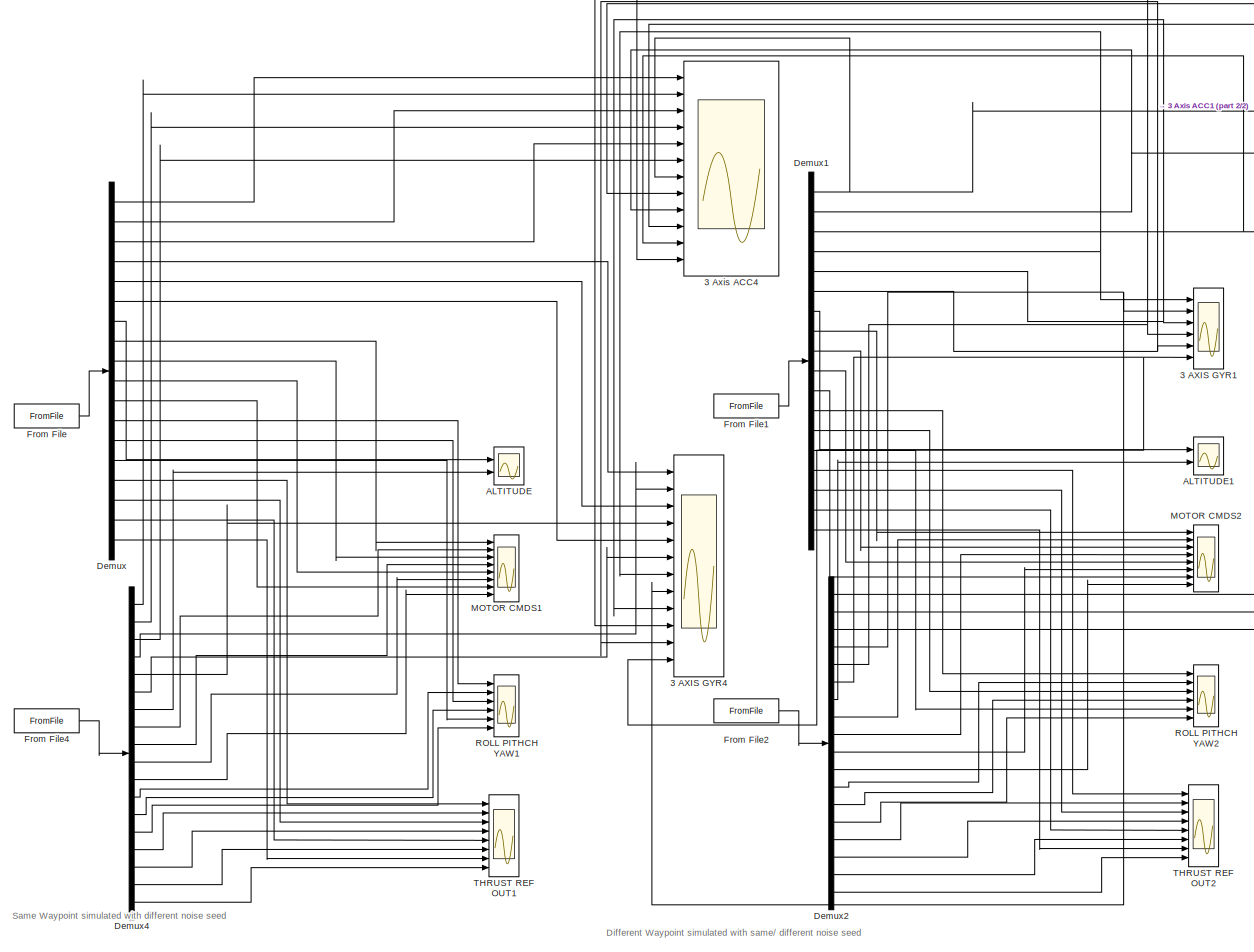
[diagram: root canvas - part 1/2, most of the canvas]
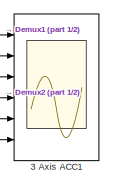
[diagram: root canvas - part 2/2, top right region]
MODEL slx_3817df0aadfa
KIND model
CONFIG AbsTol = auto
CONFIG EnableMultiTasking = off
CONFIG FixedStep = auto
CONFIG MaxStep = auto
CONFIG MinStep = auto
CONFIG RelTol = 1e-3
CONFIG SampleTimeConstraint = Unconstrained
CONFIG Solver = VariableStepAuto
CONFIG SolverName = VariableStepAuto
CONFIG StartTime = 0.0
CONFIG StopTime = 60
BLOCK [Scope] 3 AXIS GYR1
  Floating = off
  NumInputPorts = 6
  Ports = [6]
  ScopeSpecificationString = Simulink.scopes.TimeScopeBlockCfg('CurrentConfiguration', extmgr.ConfigurationSet(extmgr.Configuration('Core','General UI',true),extmgr.Configuration('Core','Source UI',true),extmgr.Configuration('Sources','WiredSimulink',true,'DataLoggingVariableName','ScopeData1'),extmgr.Configuration('Visuals','Time Domain',true,'SerializedDisplays',{struct('MinYLimReal','-1.17519','MaxYLimReal','0.89569','YLab...<+1581ch>
BLOCK [Scope] 3 AXIS GYR4
  Floating = off
  NumInputPorts = 12
  Ports = [12]
  ScopeSpecificationString = Simulink.scopes.TimeScopeBlockCfg('CurrentConfiguration', extmgr.ConfigurationSet(extmgr.Configuration('Core','General UI',true),extmgr.Configuration('Core','Source UI',true),extmgr.Configuration('Sources','WiredSimulink',true,'DataLoggingVariableName','ScopeData2'),extmgr.Configuration('Visuals','Time Domain',true,'SerializedDisplays',{struct('MinYLimReal','-0.71311','MaxYLimReal','0.81738','YLab...<+1843ch>
BLOCK [Scope] 3 Axis ACC1
  Floating = off
  NumInputPorts = 6
  Ports = [6]
  ScopeSpecificationString = Simulink.scopes.TimeScopeBlockCfg('CurrentConfiguration', extmgr.ConfigurationSet(extmgr.Configuration('Core','General UI',true),extmgr.Configuration('Core','Source UI',true),extmgr.Configuration('Sources','WiredSimulink',true,'DataLoggingVariableName','ScopeData2'),extmgr.Configuration('Visuals','Time Domain',true,'SerializedDisplays',{struct('MinYLimReal','-17.13825','MaxYLimReal','8.97232','YLa...<+1771ch>
BLOCK [Scope] 3 Axis ACC4
  Floating = off
  NumInputPorts = 12
  Ports = [12]
  ScopeSpecificationString = Simulink.scopes.TimeScopeBlockCfg('CurrentConfiguration', extmgr.ConfigurationSet(extmgr.Configuration('Core','General UI',true),extmgr.Configuration('Core','Source UI',true),extmgr.Configuration('Sources','WiredSimulink',true),extmgr.Configuration('Visuals','Time Domain',true,'SerializedDisplays',{struct('MinYLimReal','-1.9196','MaxYLimReal','1.24784','YLabelReal','','MinYLimMag','0.00000','MaxYL...<+1799ch>
BLOCK [Scope] ALTITUDE
  Floating = off
  NumInputPorts = 2
  Ports = [2]
  ScopeSpecificationString = Simulink.scopes.TimeScopeBlockCfg('CurrentConfiguration', extmgr.ConfigurationSet(extmgr.Configuration('Core','General UI',true),extmgr.Configuration('Core','Source UI',true),extmgr.Configuration('Sources','WiredSimulink',true,'DataLoggingVariableName','ScopeData1'),extmgr.Configuration('Visuals','Time Domain',true,'SerializedDisplays',{struct('MinYLimReal','-1.61246','MaxYLimReal','18.91216','YLa...<+1381ch>
BLOCK [Scope] ALTITUDE1
  Floating = off
  NumInputPorts = 2
  Ports = [2]
  ScopeSpecificationString = Simulink.scopes.TimeScopeBlockCfg('CurrentConfiguration', extmgr.ConfigurationSet(extmgr.Configuration('Core','General UI',true),extmgr.Configuration('Core','Source UI',true),extmgr.Configuration('Sources','WiredSimulink',true,'DataLoggingVariableName','ScopeData3'),extmgr.Configuration('Visuals','Time Domain',true,'SerializedDisplays',{struct('MinYLimReal','-1.61246','MaxYLimReal','18.91216','YLa...<+1381ch>
BLOCK [Demux] Demux
  Outputs = 18
  Ports = [1, 18]
BLOCK [Demux] Demux1
  Outputs = 18
  Ports = [1, 18]
BLOCK [Demux] Demux2
  Outputs = 18
  Ports = [1, 18]
BLOCK [Demux] Demux4
  Outputs = 18
  Ports = [1, 18]
BLOCK [FromFile] From File
  FileName = <userpath>\Documents\MATLAB\Master_Thesis\model\parrotMinidroneWaypointFollower\Fault_Free_Data\Fault_Free_Simulation_1.mat
  SampleTime = 0.1
BLOCK [FromFile] From File1
  FileName = <userpath>\Documents\MATLAB\Master_Thesis\model\parrotMinidroneWaypointFollower\Fault_Free_Data\Fault_Free_Simulation_90.mat
  SampleTime = 0.1
BLOCK [FromFile] From File2
  FileName = <userpath>\Documents\MATLAB\Master_Thesis\model\parrotMinidroneWaypointFollower\Fault_Free_Data\Fault_Free_Simulation_185.mat
  SampleTime = 0.1
BLOCK [FromFile] From File4
  FileName = <userpath>\Documents\MATLAB\Master_Thesis\model\parrotMinidroneWaypointFollower\Fault_Free_Data\Fault_Free_Simulation_12.mat
  SampleTime = 0.1
BLOCK [Scope] MOTOR CMDS1
  Floating = off
  NumInputPorts = 8
  Ports = [8]
  ScopeSpecificationString = Simulink.scopes.TimeScopeBlockCfg('CurrentConfiguration', extmgr.ConfigurationSet(extmgr.Configuration('Core','General UI',true),extmgr.Configuration('Core','Source UI',true),extmgr.Configuration('Sources','WiredSimulink',true,'DataLoggingVariableName','ScopeData3'),extmgr.Configuration('Visuals','Time Domain',true,'SerializedDisplays',{struct('MinYLimReal','216.80864','MaxYLimReal','245.97848','Y...<+1531ch>
BLOCK [Scope] MOTOR CMDS2
  Floating = off
  NumInputPorts = 8
  Ports = [8]
  ScopeSpecificationString = Simulink.scopes.TimeScopeBlockCfg('CurrentConfiguration', extmgr.ConfigurationSet(extmgr.Configuration('Core','General UI',true),extmgr.Configuration('Core','Source UI',true),extmgr.Configuration('Sources','WiredSimulink',true,'DataLoggingVariableName','ScopeData4'),extmgr.Configuration('Visuals','Time Domain',true,'SerializedDisplays',{struct('MinYLimReal','-429.47679','MaxYLimReal','429.48909','...<+1458ch>
BLOCK [Scope] ROLL PITHCH YAW1
  Floating = off
  NumInputPorts = 6
  Ports = [6]
  ScopeSpecificationString = Simulink.scopes.TimeScopeBlockCfg('CurrentConfiguration', extmgr.ConfigurationSet(extmgr.Configuration('Core','General UI',true),extmgr.Configuration('Core','Source UI',true),extmgr.Configuration('Sources','WiredSimulink',true,'DataLoggingVariableName','ScopeData4'),extmgr.Configuration('Visuals','Time Domain',true,'SerializedDisplays',{struct('MinYLimReal','-0.43549','MaxYLimReal','0.29225','YLab...<+1593ch>
BLOCK [Scope] ROLL PITHCH YAW2
  Floating = off
  NumInputPorts = 6
  Ports = [6]
  ScopeSpecificationString = Simulink.scopes.TimeScopeBlockCfg('CurrentConfiguration', extmgr.ConfigurationSet(extmgr.Configuration('Core','General UI',true),extmgr.Configuration('Core','Source UI',true),extmgr.Configuration('Sources','WiredSimulink',true,'DataLoggingVariableName','ScopeData5'),extmgr.Configuration('Visuals','Time Domain',true,'SerializedDisplays',{struct('MinYLimReal','-0.43549','MaxYLimReal','0.29225','YLab...<+1593ch>
BLOCK [Scope] THRUST REF OUT1
  Floating = off
  NumInputPorts = 8
  Ports = [8]
  ScopeSpecificationString = Simulink.scopes.TimeScopeBlockCfg('CurrentConfiguration', extmgr.ConfigurationSet(extmgr.Configuration('Core','General UI',true),extmgr.Configuration('Core','Source UI',true),extmgr.Configuration('Sources','WiredSimulink',true,'DataLoggingVariableName','ScopeData5'),extmgr.Configuration('Visuals','Time Domain',true,'SerializedDisplays',{struct('MinYLimReal','-0.29022','MaxYLimReal','0.36732','YLab...<+1448ch>
BLOCK [Scope] THRUST REF OUT2
  Floating = off
  NumInputPorts = 8
  Ports = [8]
  ScopeSpecificationString = Simulink.scopes.TimeScopeBlockCfg('CurrentConfiguration', extmgr.ConfigurationSet(extmgr.Configuration('Core','General UI',true),extmgr.Configuration('Core','Source UI',true),extmgr.Configuration('Sources','WiredSimulink',true,'DataLoggingVariableName','ScopeData7'),extmgr.Configuration('Visuals','Time Domain',true,'SerializedDisplays',{struct('MinYLimReal','-0.29022','MaxYLimReal','0.36732','YLab...<+1448ch>
ANNOTATION (root): Different Waypoint simulated with same/ different noise seed
ANNOTATION (root): Same Waypoint simulated with different noise seed
NET Demux1:1 -> 3 Axis ACC1:1, 3 Axis ACC4:7
LINE Demux1:10 -> MOTOR CMDS2:5
LINE Demux1:11 -> MOTOR CMDS2:7
LINE Demux1:12 -> ROLL PITHCH YAW2:1
LINE Demux1:13 -> ROLL PITHCH YAW2:3
LINE Demux1:14 -> ROLL PITHCH YAW2:5
LINE Demux1:15 -> THRUST REF OUT2:1
LINE Demux1:16 -> THRUST REF OUT2:3
LINE Demux1:17 -> THRUST REF OUT2:5
LINE Demux1:18 -> THRUST REF OUT2:7
NET Demux1:2 -> 3 Axis ACC1:3, 3 Axis ACC4:9
NET Demux1:3 -> 3 Axis ACC1:5, 3 Axis ACC4:11
NET Demux1:4 -> 3 AXIS GYR1:1, 3 AXIS GYR4:7
NET Demux1:5 -> 3 AXIS GYR1:3, 3 AXIS GYR4:9
NET Demux1:6 -> 3 AXIS GYR1:5, 3 AXIS GYR4:11
LINE Demux1:7 -> ALTITUDE1:1
LINE Demux1:8 -> MOTOR CMDS2:1
LINE Demux1:9 -> MOTOR CMDS2:3
NET Demux2:1 -> 3 Axis ACC1:2, 3 Axis ACC4:8
LINE Demux2:10 -> MOTOR CMDS2:6
LINE Demux2:11 -> MOTOR CMDS2:8
LINE Demux2:12 -> ROLL PITHCH YAW2:2
LINE Demux2:13 -> ROLL PITHCH YAW2:4
LINE Demux2:14 -> ROLL PITHCH YAW2:6
LINE Demux2:15 -> THRUST REF OUT2:2
LINE Demux2:16 -> THRUST REF OUT2:4
LINE Demux2:17 -> THRUST REF OUT2:6
LINE Demux2:18 -> THRUST REF OUT2:8
NET Demux2:2 -> 3 Axis ACC1:4, 3 Axis ACC4:10
NET Demux2:3 -> 3 Axis ACC1:6, 3 Axis ACC4:12
NET Demux2:4 -> 3 AXIS GYR1:2, 3 AXIS GYR4:8
NET Demux2:5 -> 3 AXIS GYR1:4, 3 AXIS GYR4:10
NET Demux2:6 -> 3 AXIS GYR1:6, 3 AXIS GYR4:12
LINE Demux2:7 -> ALTITUDE1:2
LINE Demux2:8 -> MOTOR CMDS2:2
LINE Demux2:9 -> MOTOR CMDS2:4
LINE Demux4:1 -> 3 Axis ACC4:2
LINE Demux4:10 -> MOTOR CMDS1:6
LINE Demux4:11 -> MOTOR CMDS1:8
LINE Demux4:12 -> ROLL PITHCH YAW1:2
LINE Demux4:13 -> ROLL PITHCH YAW1:4
LINE Demux4:14 -> ROLL PITHCH YAW1:6
LINE Demux4:15 -> THRUST REF OUT1:2
LINE Demux4:16 -> THRUST REF OUT1:4
LINE Demux4:17 -> THRUST REF OUT1:6
LINE Demux4:18 -> THRUST REF OUT1:8
LINE Demux4:2 -> 3 Axis ACC4:4
LINE Demux4:3 -> 3 Axis ACC4:6
LINE Demux4:4 -> 3 AXIS GYR4:2
LINE Demux4:5 -> 3 AXIS GYR4:4
LINE Demux4:6 -> 3 AXIS GYR4:6
LINE Demux4:7 -> ALTITUDE:2
LINE Demux4:8 -> MOTOR CMDS1:2
LINE Demux4:9 -> MOTOR CMDS1:4
LINE Demux:1 -> 3 Axis ACC4:1
LINE Demux:10 -> MOTOR CMDS1:5
LINE Demux:11 -> MOTOR CMDS1:7
LINE Demux:12 -> ROLL PITHCH YAW1:1
LINE Demux:13 -> ROLL PITHCH YAW1:3
LINE Demux:14 -> ROLL PITHCH YAW1:5
LINE Demux:15 -> THRUST REF OUT1:1
LINE Demux:16 -> THRUST REF OUT1:3
LINE Demux:17 -> THRUST REF OUT1:5
LINE Demux:18 -> THRUST REF OUT1:7
LINE Demux:2 -> 3 Axis ACC4:3
LINE Demux:3 -> 3 Axis ACC4:5
LINE Demux:4 -> 3 AXIS GYR4:1
LINE Demux:5 -> 3 AXIS GYR4:3
LINE Demux:6 -> 3 AXIS GYR4:5
LINE Demux:7 -> ALTITUDE:1
LINE Demux:8 -> MOTOR CMDS1:1
LINE Demux:9 -> MOTOR CMDS1:3
LINE From File1:1 -> Demux1:1
LINE From File2:1 -> Demux2:1
LINE From File4:1 -> Demux4:1
LINE From File:1 -> Demux:1
note: NET lines group one-source signal fan-out (src -> all destinations, sorted); 1:1 wires keep LINE
